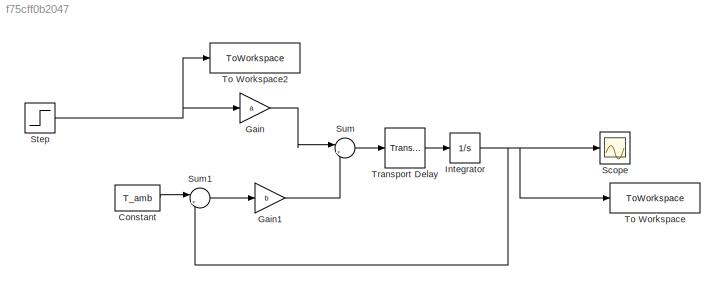
MODEL slx_f75cff0b2047
KIND model
CONFIG AbsTol = auto
CONFIG EnableMultiTasking = off
CONFIG FixedStep = auto
CONFIG MaxStep = auto
CONFIG MinStep = auto
CONFIG RelTol = 1e-3
CONFIG SampleTimeConstraint = Unconstrained
CONFIG SolverName = VariableStepAuto
CONFIG StartTime = 0.0
CONFIG StopTime = T_end
BLOCK [Constant] Constant
  Value = T_amb
BLOCK [Gain] Gain
  Gain = a
BLOCK [Gain] Gain1
  Gain = b
BLOCK [Integrator] Integrator
  InitialCondition = T_ini
  Ports = [1, 1]
BLOCK [Scope] Scope
  Floating = off
  NumInputPorts = 1
  Ports = [1]
  ScopeSpecificationString = Simulink.scopes.TimeScopeBlockCfg('CurrentConfiguration', extmgr.ConfigurationSet(extmgr.Configuration('Core','General UI',true),extmgr.Configuration('Core','Source UI',true),extmgr.Configuration('Sources','WiredSimulink',true),extmgr.Configuration('Visuals','Time Domain',true,'SerializedDisplays',{struct('MinYLimReal','26.27095','MaxYLimReal','39.46144','YLabelReal','','MinYLimMag','26.27095','Ma...<+1363ch>
BLOCK [Step] Step
  After = 0
  Before = u
  SampleTime = 0
  Time = t_espera
BLOCK [Sum] Sum
  Inputs = |++
  Ports = [2, 1]
BLOCK [Sum] Sum1
  Inputs = |+-
  Ports = [2, 1]
BLOCK [ToWorkspace] To Workspace
  FixptAsFi = on
  MaxDataPoints = inf
  Ports = [1]
  SampleTime = -1
  VariableName = T
BLOCK [ToWorkspace] To Workspace2
  FixptAsFi = on
  MaxDataPoints = inf
  Ports = [1]
  SampleTime = -1
  VariableName = u
BLOCK [TransportDelay] Transport Delay
  DelayTime = 1.5
  Ports = [1, 1]
LINE Constant:1 -> Sum1:1
LINE Gain1:1 -> Sum:2
LINE Gain:1 -> Sum:1
NET Integrator:1 -> Scope:1, Sum1:2, To Workspace:1
NET Step:1 -> Gain:1, To Workspace2:1
LINE Sum1:1 -> Gain1:1
LINE Sum:1 -> Transport Delay:1
LINE Transport Delay:1 -> Integrator:1
note: NET lines group one-source signal fan-out (src -> all destinations, sorted); 1:1 wires keep LINE
